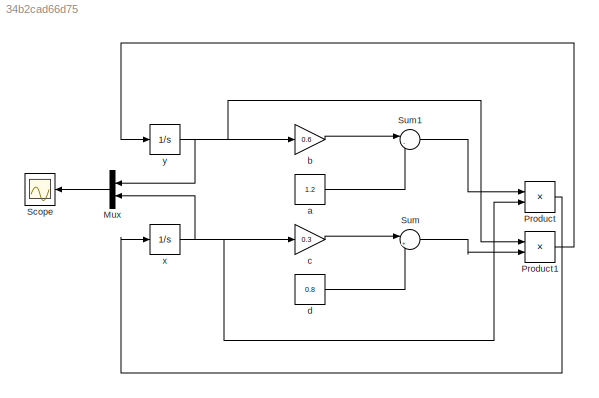
MODEL slx_34b2cad66d75
KIND model
CONFIG AbsTol = auto
CONFIG EnableMultiTasking = off
CONFIG FixedStep = 0.001
CONFIG MaxStep = auto
CONFIG MinStep = auto
CONFIG RelTol = 1e-3
CONFIG SampleTimeConstraint = Unconstrained
CONFIG SolverName = VariableStepAuto
CONFIG StartTime = 0.0
CONFIG StopTime = 20
BLOCK [Mux] Mux
  DisplayOption = bar
  Inputs = 2
  Ports = [2, 1]
BLOCK [Product] Product
  Ports = [2, 1]
BLOCK [Product] Product1
  Ports = [2, 1]
BLOCK [Scope] Scope
  Floating = off
  NumInputPorts = 1
  Ports = [1]
  ScopeSpecificationString = Simulink.scopes.TimeScopeBlockCfg('CurrentConfiguration', extmgr.ConfigurationSet(extmgr.Configuration('Core','General UI',true),extmgr.Configuration('Core','Source UI',true),extmgr.Configuration('Sources','WiredSimulink',true,'SampleTime','0.001'),extmgr.Configuration('Visuals','Time Domain',true,'SerializedDisplays',{struct('MinYLimReal','0.39091','MaxYLimReal','6.00306','YLabelReal','','MinYLim...<+1445ch>
BLOCK [Sum] Sum
  Inputs = |+-
  Ports = [2, 1]
BLOCK [Sum] Sum1
  Inputs = |-+
  Ports = [2, 1]
BLOCK [Constant] a
  Value = 1.2
BLOCK [Gain] b
  Gain = 0.6
BLOCK [Gain] c
  Gain = 0.3
BLOCK [Constant] d
  Value = 0.8
BLOCK [Integrator] x
  InitialCondition = 2
  Ports = [1, 1]
BLOCK [Integrator] y
  InitialCondition = 1
  Ports = [1, 1]
LINE Mux:1 -> Scope:1
LINE Product1:1 -> y:1
LINE Product:1 -> x:1
LINE Sum1:1 -> Product:1
LINE Sum:1 -> Product1:2
LINE a:1 -> Sum1:2
LINE b:1 -> Sum1:1
LINE c:1 -> Sum:1
LINE d:1 -> Sum:2
NET x:1 -> Mux:2, Product:2, c:1
NET y:1 -> Mux:1, Product1:1, b:1
note: NET lines group one-source signal fan-out (src -> all destinations, sorted); 1:1 wires keep LINE
